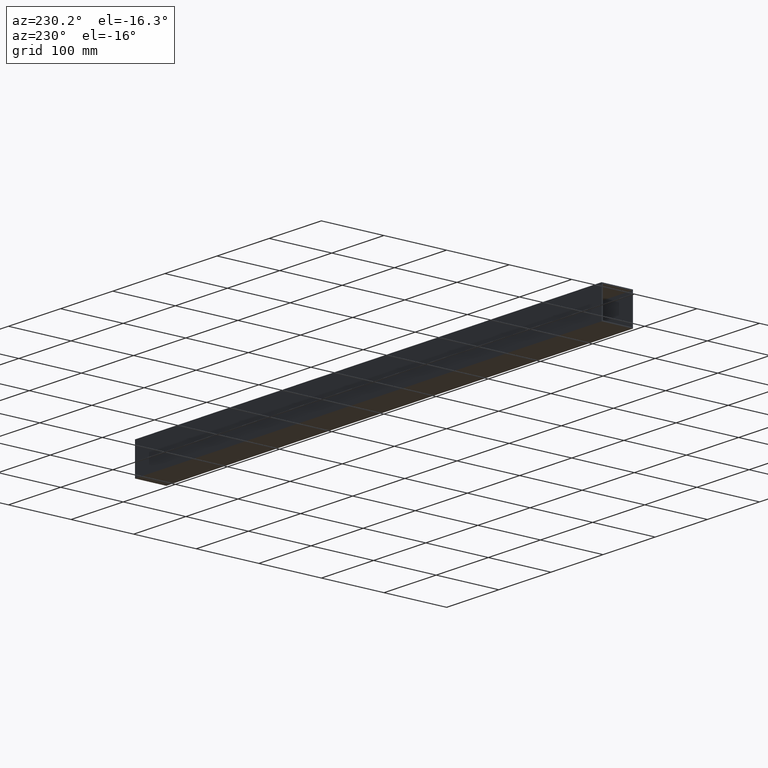
[diagram: clean part render]
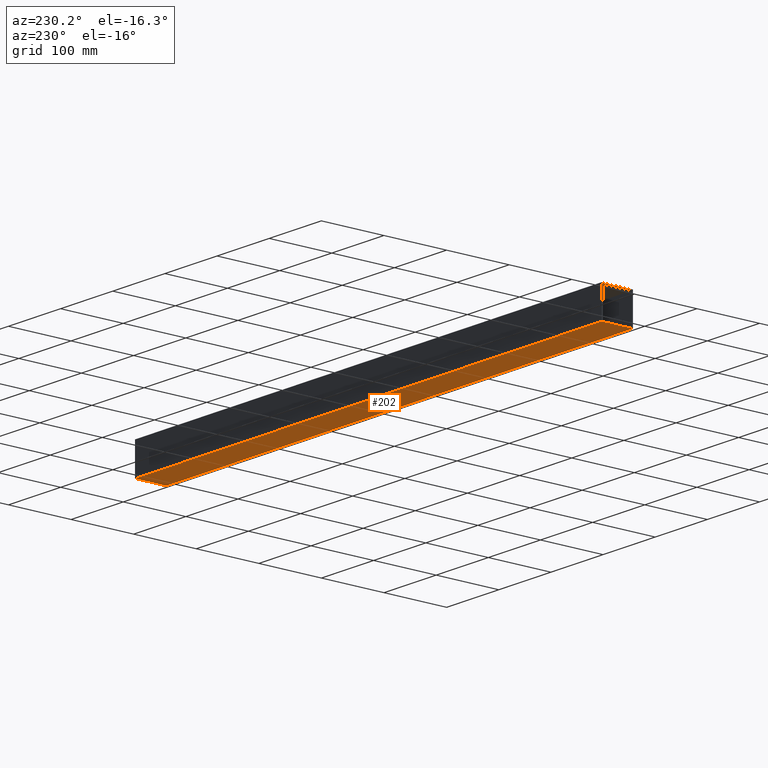
[diagram: same view with one face highlighted and labeled with its STEP entity id]
A machine part, auxiliary view. The second image highlights one B-rep face of the part: STEP entity #202.
In plain terms, the highlighted planar face has unit normal (-0, 0, 1).
Its self-contained STEP definition (entity closure, byte-faithful):
#2 = EDGE_LOOP ( 'NONE', ( #86, #176, #343, #348 ) ) ;
#17 = VERTEX_POINT ( 'NONE', #329 ) ;
#23 = DIRECTION ( 'NONE',  ( -9.772348340399519194E-31, 3.191891195797322293E-15, 1.000000000000000000 ) ) ;
#27 = DIRECTION ( 'NONE',  ( 0.000000000000000000, -1.000000000000000000, 3.191891195797322293E-15 ) ) ;
#32 = DIRECTION ( 'NONE',  ( 1.000000000000000000, 3.061616997868382648E-16, -0.000000000000000000 ) ) ;
#50 = EDGE_CURVE ( 'NONE', #297, #232, #333, .T. ) ;
#54 = AXIS2_PLACEMENT_3D ( 'NONE', #222, #23, #309 ) ;
#86 = ORIENTED_EDGE ( 'NONE', *, *, #287, .T. ) ;
#102 = VECTOR ( 'NONE', #27, 1000.000000000000000 ) ;
#103 = VERTEX_POINT ( 'NONE', #248 ) ;
#108 = FACE_OUTER_BOUND ( 'NONE', #2, .T. ) ;
#111 = LINE ( 'NONE', #115, #102 ) ;
#115 = CARTESIAN_POINT ( 'NONE',  ( 447.5000000000000000, 25.00000000000011013, -25.00000000000009237 ) ) ;
#117 = CARTESIAN_POINT ( 'NONE',  ( -447.5000000000000000, 24.99999999999983658, -25.00000000000009237 ) ) ;
#126 = EDGE_CURVE ( 'NONE', #297, #103, #250, .T. ) ;
#142 = PLANE ( 'NONE',  #54 ) ;
#164 = CARTESIAN_POINT ( 'NONE',  ( -447.5000000000000000, 24.99999999999983658, -25.00000000000009237 ) ) ;
#172 = LINE ( 'NONE', #231, #291 ) ;
#176 = ORIENTED_EDGE ( 'NONE', *, *, #354, .F. ) ;
#187 = DIRECTION ( 'NONE',  ( 0.000000000000000000, -1.000000000000000000, 3.191891195797322293E-15 ) ) ;
#202 = ADVANCED_FACE ( 'NONE', ( #108 ), #142, .F. ) ;
#222 = CARTESIAN_POINT ( 'NONE',  ( -447.5000000000000000, 24.99999999999983658, -25.00000000000009237 ) ) ;
#231 = CARTESIAN_POINT ( 'NONE',  ( -447.5000000000000000, -25.00000000000020961, -24.99999999999993250 ) ) ;
#232 = VERTEX_POINT ( 'NONE', #340 ) ;
#234 = VECTOR ( 'NONE', #187, 1000.000000000000000 ) ;
#248 = CARTESIAN_POINT ( 'NONE',  ( 447.5000000000000000, 25.00000000000011013, -25.00000000000009237 ) ) ;
#250 = LINE ( 'NONE', #282, #336 ) ;
#255 = DIRECTION ( 'NONE',  ( 1.000000000000000000, 3.061616997868382648E-16, -0.000000000000000000 ) ) ;
#282 = CARTESIAN_POINT ( 'NONE',  ( -447.5000000000000000, 24.99999999999983658, -25.00000000000009237 ) ) ;
#287 = EDGE_CURVE ( 'NONE', #103, #17, #111, .T. ) ;
#291 = VECTOR ( 'NONE', #32, 1000.000000000000000 ) ;
#297 = VERTEX_POINT ( 'NONE', #117 ) ;
#309 = DIRECTION ( 'NONE',  ( 0.000000000000000000, -1.000000000000000000, 3.191891195797322293E-15 ) ) ;
#329 = CARTESIAN_POINT ( 'NONE',  ( 447.5000000000000000, -24.99999999999993605, -24.99999999999993250 ) ) ;
#333 = LINE ( 'NONE', #164, #234 ) ;
#336 = VECTOR ( 'NONE', #255, 1000.000000000000000 ) ;
#340 = CARTESIAN_POINT ( 'NONE',  ( -447.5000000000000000, -25.00000000000020961, -24.99999999999993250 ) ) ;
#343 = ORIENTED_EDGE ( 'NONE', *, *, #50, .F. ) ;
#348 = ORIENTED_EDGE ( 'NONE', *, *, #126, .T. ) ;
#354 = EDGE_CURVE ( 'NONE', #232, #17, #172, .T. ) ;